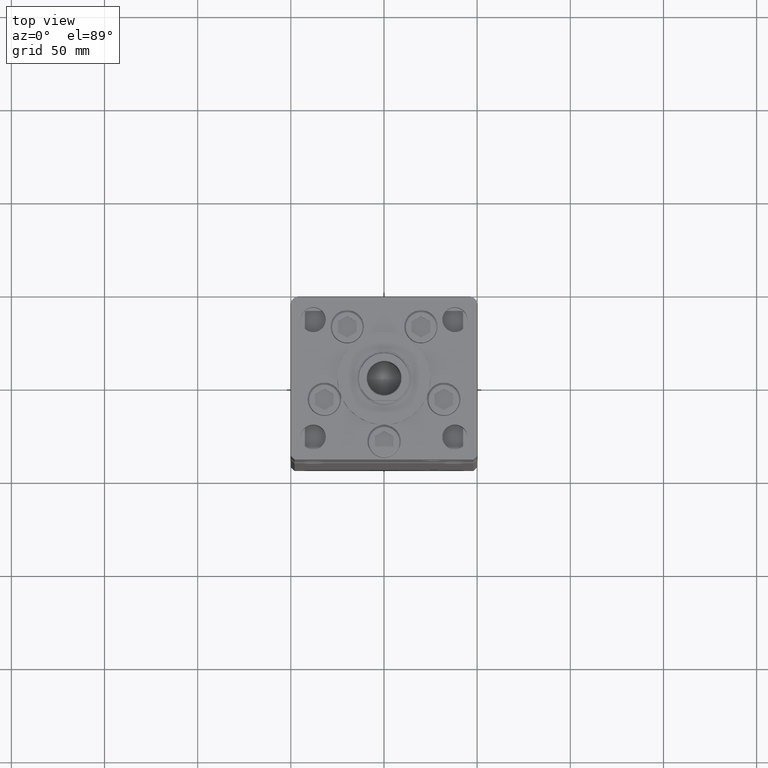
[diagram: clean part render]
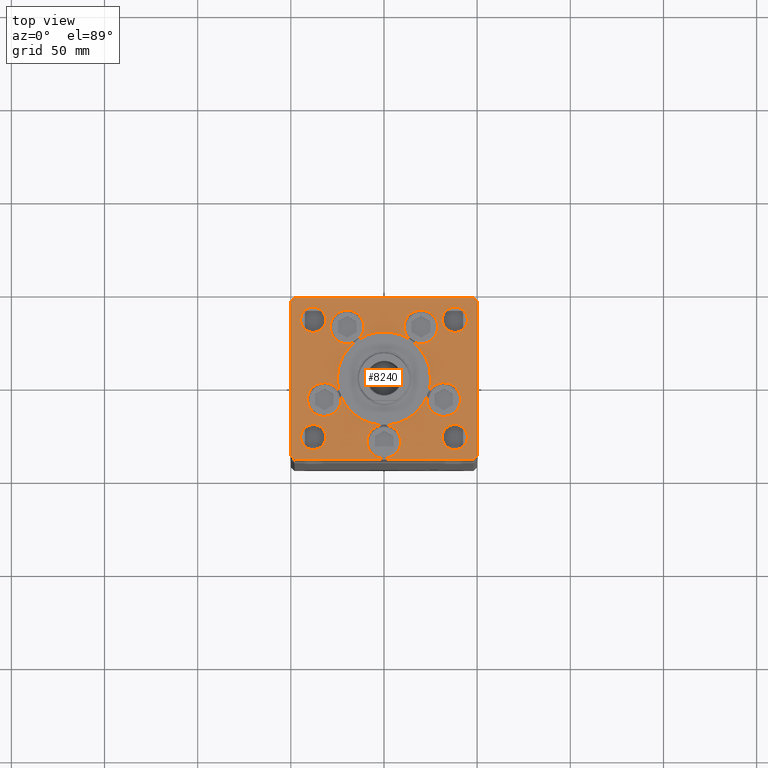
[diagram: same view with one face highlighted and labeled with its STEP entity id]
A machine part, top view. The second image highlights one B-rep face of the part: STEP entity #8240.
In plain terms, the highlighted planar face has unit normal (0, 0, 1).
Its self-contained STEP definition (entity closure, byte-faithful):
#178 = CARTESIAN_POINT ( 'NONE',  ( 47.99999999999999289, 43.50000000000000000, 0.000000000000000000 ) ) ;
#237 = ORIENTED_EDGE ( 'NONE', *, *, #46623, .T. ) ;
#488 = CIRCLE ( 'NONE', #52843, 6.749999999999999112 ) ;
#527 = AXIS2_PLACEMENT_3D ( 'NONE', #33779, #28940, #21694 ) ;
#541 = LINE ( 'NONE', #29288, #1303 ) ;
#577 = ORIENTED_EDGE ( 'NONE', *, *, #46697, .F. ) ;
#1220 = DIRECTION ( 'NONE',  ( 1.000000000000000000, 0.000000000000000000, 0.000000000000000000 ) ) ;
#1303 = VECTOR ( 'NONE', #50244, 1000.000000000000000 ) ;
#1397 = EDGE_CURVE ( 'NONE', #33770, #30758, #43979, .T. ) ;
#1419 = AXIS2_PLACEMENT_3D ( 'NONE', #34790, #51176, #10610 ) ;
#1478 = CARTESIAN_POINT ( 'NONE',  ( -9.000000000000000000, -34.00000000000000000, 0.000000000000000000 ) ) ;
#1790 = AXIS2_PLACEMENT_3D ( 'NONE', #8534, #8006, #37007 ) ;
#1950 = CARTESIAN_POINT ( 'NONE',  ( 32.05550741379015989, -11.33333333333332860, 0.000000000000000000 ) ) ;
#2024 = ORIENTED_EDGE ( 'NONE', *, *, #8502, .F. ) ;
#2588 = EDGE_CURVE ( 'NONE', #44837, #32269, #8793, .T. ) ;
#3127 = VERTEX_POINT ( 'NONE', #45392 ) ;
#3428 = AXIS2_PLACEMENT_3D ( 'NONE', #27082, #10715, #23585 ) ;
#3695 = EDGE_CURVE ( 'NONE', #16921, #8331, #37218, .T. ) ;
#3833 = CIRCLE ( 'NONE', #11549, 6.749999999999999112 ) ;
#4064 = CARTESIAN_POINT ( 'NONE',  ( -32.05550741379015989, -11.33333333333332860, 0.000000000000000000 ) ) ;
#4393 = EDGE_CURVE ( 'NONE', #51844, #41886, #39770, .T. ) ;
#4591 = DIRECTION ( 'NONE',  ( 1.000000000000000000, 0.000000000000000000, 0.000000000000000000 ) ) ;
#4751 = ORIENTED_EDGE ( 'NONE', *, *, #25495, .F. ) ;
#4832 = LINE ( 'NONE', #46737, #12812 ) ;
#4835 = AXIS2_PLACEMENT_3D ( 'NONE', #44134, #44396, #27998 ) ;
#4864 = AXIS2_PLACEMENT_3D ( 'NONE', #1950, #26909, #6249 ) ;
#5104 = DIRECTION ( 'NONE',  ( 1.000000000000000000, 0.000000000000000000, 0.000000000000000000 ) ) ;
#5470 = VERTEX_POINT ( 'NONE', #43689 ) ;
#5696 = CARTESIAN_POINT ( 'NONE',  ( -31.25000000000000711, -31.50000000000000711, 0.000000000000000000 ) ) ;
#5837 = CARTESIAN_POINT ( 'NONE',  ( 38.00000000000000711, -31.50000000000000711, 0.000000000000000000 ) ) ;
#5903 = DIRECTION ( 'NONE',  ( 1.000000000000000000, 0.000000000000000000, 0.000000000000000000 ) ) ;
#6249 = DIRECTION ( 'NONE',  ( 1.000000000000000000, 0.000000000000000000, 0.000000000000000000 ) ) ;
#6298 = AXIS2_PLACEMENT_3D ( 'NONE', #53011, #32579, #20494 ) ;
#6611 = ORIENTED_EDGE ( 'NONE', *, *, #9516, .F. ) ;
#6972 = EDGE_CURVE ( 'NONE', #38397, #17687, #37984, .T. ) ;
#7043 = VERTEX_POINT ( 'NONE', #24769 ) ;
#7083 = DIRECTION ( 'NONE',  ( 1.000000000000000000, 0.000000000000000000, 0.000000000000000000 ) ) ;
#7141 = DIRECTION ( 'NONE',  ( -0.7071067811865536790, -0.7071067811865414665, 0.000000000000000000 ) ) ;
#7168 = CIRCLE ( 'NONE', #28602, 6.749999999999999112 ) ;
#7252 = ORIENTED_EDGE ( 'NONE', *, *, #48240, .T. ) ;
#7376 = ORIENTED_EDGE ( 'NONE', *, *, #21017, .F. ) ;
#7432 = ORIENTED_EDGE ( 'NONE', *, *, #12560, .T. ) ;
#7566 = DIRECTION ( 'NONE',  ( -0.000000000000000000, -0.000000000000000000, -1.000000000000000000 ) ) ;
#8006 = DIRECTION ( 'NONE',  ( 0.000000000000000000, 0.000000000000000000, 1.000000000000000000 ) ) ;
#8107 = DIRECTION ( 'NONE',  ( 0.000000000000000000, 0.000000000000000000, 1.000000000000000000 ) ) ;
#8240 = ADVANCED_FACE ( 'NONE', ( #33584, #25779, #41908, #17472, #50228, #33313 ), #25511, .T. ) ;
#8331 = VERTEX_POINT ( 'NONE', #52882 ) ;
#8502 = EDGE_CURVE ( 'NONE', #8331, #33770, #34613, .T. ) ;
#8534 = CARTESIAN_POINT ( 'NONE',  ( 19.82068048781374969, 27.62499999999998934, 0.000000000000000000 ) ) ;
#8677 = CIRCLE ( 'NONE', #1790, 8.999999999999998224 ) ;
#8793 = LINE ( 'NONE', #178, #12286 ) ;
#8804 = CARTESIAN_POINT ( 'NONE',  ( 48.00000000000000711, -43.49999999999992184, 0.000000000000000000 ) ) ;
#8822 = CARTESIAN_POINT ( 'NONE',  ( -25.00000000000000000, -6.938893903907228378E-15, 0.000000000000000000 ) ) ;
#9045 = DIRECTION ( 'NONE',  ( 1.000000000000000000, 0.000000000000000000, 0.000000000000000000 ) ) ;
#9313 = VERTEX_POINT ( 'NONE', #31576 ) ;
#9323 = CIRCLE ( 'NONE', #44467, 8.999999999999998224 ) ;
#9351 = DIRECTION ( 'NONE',  ( 1.000000000000000000, 0.000000000000000000, 0.000000000000000000 ) ) ;
#9483 = CARTESIAN_POINT ( 'NONE',  ( 0.000000000000000000, -6.938893903907228378E-15, 0.000000000000000000 ) ) ;
#9516 = EDGE_CURVE ( 'NONE', #18557, #7043, #7168, .T. ) ;
#9610 = ORIENTED_EDGE ( 'NONE', *, *, #20102, .T. ) ;
#10102 = DIRECTION ( 'NONE',  ( 0.000000000000000000, 0.000000000000000000, 1.000000000000000000 ) ) ;
#10201 = CARTESIAN_POINT ( 'NONE',  ( 32.05550741379015989, -11.33333333333332860, 0.000000000000000000 ) ) ;
#10248 = AXIS2_PLACEMENT_3D ( 'NONE', #10201, #47769, #5903 ) ;
#10386 = AXIS2_PLACEMENT_3D ( 'NONE', #52203, #12181, #19420 ) ;
#10390 = DIRECTION ( 'NONE',  ( 1.000000000000000000, 0.000000000000000000, 0.000000000000000000 ) ) ;
#10507 = DIRECTION ( 'NONE',  ( 0.000000000000000000, 0.000000000000000000, 1.000000000000000000 ) ) ;
#10610 = DIRECTION ( 'NONE',  ( -1.000000000000000000, 0.000000000000000000, 0.000000000000000000 ) ) ;
#10715 = DIRECTION ( 'NONE',  ( 0.000000000000000000, 0.000000000000000000, 1.000000000000000000 ) ) ;
#10933 = CARTESIAN_POINT ( 'NONE',  ( -38.00000000000000000, 31.50000000000000000, 0.000000000000000000 ) ) ;
#10936 = ORIENTED_EDGE ( 'NONE', *, *, #50135, .F. ) ;
#11090 = VERTEX_POINT ( 'NONE', #27035 ) ;
#11183 = VERTEX_POINT ( 'NONE', #31335 ) ;
#11190 = EDGE_CURVE ( 'NONE', #48458, #43378, #3833, .T. ) ;
#11357 = DIRECTION ( 'NONE',  ( 0.000000000000000000, 0.000000000000000000, 1.000000000000000000 ) ) ;
#11529 = CARTESIAN_POINT ( 'NONE',  ( 23.57022603955158502, -8.333333333333332149, 0.000000000000000000 ) ) ;
#11549 = AXIS2_PLACEMENT_3D ( 'NONE', #10933, #27293, #43692 ) ;
#11644 = DIRECTION ( 'NONE',  ( 0.7071067811865487940, -0.7071067811865463515, 0.000000000000000000 ) ) ;
#11891 = DIRECTION ( 'NONE',  ( 1.000000000000000000, 0.000000000000000000, 0.000000000000000000 ) ) ;
#12181 = DIRECTION ( 'NONE',  ( 0.000000000000000000, 0.000000000000000000, 1.000000000000000000 ) ) ;
#12277 = EDGE_LOOP ( 'NONE', ( #44435, #44960 ) ) ;
#12283 = VERTEX_POINT ( 'NONE', #50046 ) ;
#12286 = VECTOR ( 'NONE', #16594, 1000.000000000000000 ) ;
#12560 = EDGE_CURVE ( 'NONE', #52043, #20231, #541, .T. ) ;
#12779 = CIRCLE ( 'NONE', #39332, 25.00000000000000000 ) ;
#12812 = VECTOR ( 'NONE', #29268, 1000.000000000000000 ) ;
#12964 = VERTEX_POINT ( 'NONE', #46622 ) ;
#13107 = LINE ( 'NONE', #13641, #37861 ) ;
#13178 = AXIS2_PLACEMENT_3D ( 'NONE', #37301, #36764, #48575 ) ;
#13332 = ORIENTED_EDGE ( 'NONE', *, *, #46758, .F. ) ;
#13641 = CARTESIAN_POINT ( 'NONE',  ( 50.00000000000000000, 41.50000000000000711, 0.000000000000000000 ) ) ;
#14104 = ORIENTED_EDGE ( 'NONE', *, *, #33522, .F. ) ;
#14281 = AXIS2_PLACEMENT_3D ( 'NONE', #4064, #8107, #4591 ) ;
#14286 = DIRECTION ( 'NONE',  ( 1.000000000000000000, 0.000000000000000000, 0.000000000000000000 ) ) ;
#14429 = CARTESIAN_POINT ( 'NONE',  ( -48.00000000000000000, 43.49999999999997158, 0.000000000000000000 ) ) ;
#14679 = CIRCLE ( 'NONE', #10386, 9.000000000000000000 ) ;
#14849 = CARTESIAN_POINT ( 'NONE',  ( 25.00000000000000000, -3.877276906038844941E-15, 0.000000000000000000 ) ) ;
#15140 = DIRECTION ( 'NONE',  ( 0.000000000000000000, 0.000000000000000000, 1.000000000000000000 ) ) ;
#15264 = EDGE_CURVE ( 'NONE', #41886, #51844, #488, .T. ) ;
#15462 = ORIENTED_EDGE ( 'NONE', *, *, #15264, .F. ) ;
#15641 = DIRECTION ( 'NONE',  ( 0.000000000000000000, 0.000000000000000000, 1.000000000000000000 ) ) ;
#15923 = CARTESIAN_POINT ( 'NONE',  ( -14.57402977045128978, 20.31249999999999289, 0.000000000000000000 ) ) ;
#16114 = EDGE_CURVE ( 'NONE', #26995, #9313, #32278, .T. ) ;
#16186 = DIRECTION ( 'NONE',  ( 1.000000000000000000, 0.000000000000000000, 0.000000000000000000 ) ) ;
#16253 = CIRCLE ( 'NONE', #47985, 25.00000000000000000 ) ;
#16293 = AXIS2_PLACEMENT_3D ( 'NONE', #9483, #25845, #38228 ) ;
#16441 = EDGE_CURVE ( 'NONE', #8331, #11090, #49463, .T. ) ;
#16494 = EDGE_CURVE ( 'NONE', #32269, #12964, #51223, .T. ) ;
#16594 = DIRECTION ( 'NONE',  ( -1.000000000000000000, -2.891205793294678326E-16, 0.000000000000000000 ) ) ;
#16609 = CARTESIAN_POINT ( 'NONE',  ( 14.57402977045128623, 20.31249999999998579, 0.000000000000000000 ) ) ;
#16886 = CIRCLE ( 'NONE', #4864, 9.000000000000001776 ) ;
#16921 = VERTEX_POINT ( 'NONE', #34345 ) ;
#16977 = CARTESIAN_POINT ( 'NONE',  ( -10.82068048781375147, 27.62499999999998934, 0.000000000000000000 ) ) ;
#16979 = DIRECTION ( 'NONE',  ( 0.000000000000000000, 0.000000000000000000, 1.000000000000000000 ) ) ;
#17105 = CIRCLE ( 'NONE', #41115, 6.749999999999999112 ) ;
#17134 = EDGE_CURVE ( 'NONE', #52039, #52043, #38583, .T. ) ;
#17172 = DIRECTION ( 'NONE',  ( 0.000000000000000000, 0.000000000000000000, 1.000000000000000000 ) ) ;
#17472 = FACE_BOUND ( 'NONE', #28338, .T. ) ;
#17687 = VERTEX_POINT ( 'NONE', #16977 ) ;
#17868 = CIRCLE ( 'NONE', #43574, 25.00000000000000000 ) ;
#18307 = ORIENTED_EDGE ( 'NONE', *, *, #35034, .F. ) ;
#18557 = VERTEX_POINT ( 'NONE', #5696 ) ;
#19221 = DIRECTION ( 'NONE',  ( 0.000000000000000000, 0.000000000000000000, 1.000000000000000000 ) ) ;
#19270 = ORIENTED_EDGE ( 'NONE', *, *, #51551, .T. ) ;
#19363 = VERTEX_POINT ( 'NONE', #8822 ) ;
#19420 = DIRECTION ( 'NONE',  ( 1.000000000000000000, 0.000000000000000000, 0.000000000000000000 ) ) ;
#19478 = ORIENTED_EDGE ( 'NONE', *, *, #51850, .F. ) ;
#19651 = CIRCLE ( 'NONE', #10248, 9.000000000000001776 ) ;
#19732 = CARTESIAN_POINT ( 'NONE',  ( 47.99999999999999289, 43.50000000000000000, 0.000000000000000000 ) ) ;
#19858 = VERTEX_POINT ( 'NONE', #44946 ) ;
#20102 = EDGE_CURVE ( 'NONE', #5470, #52039, #38365, .T. ) ;
#20231 = VERTEX_POINT ( 'NONE', #24340 ) ;
#20494 = DIRECTION ( 'NONE',  ( 1.000000000000000000, 0.000000000000000000, 0.000000000000000000 ) ) ;
#20657 = DIRECTION ( 'NONE',  ( 1.000000000000000000, 0.000000000000000000, 0.000000000000000000 ) ) ;
#21017 = EDGE_CURVE ( 'NONE', #11090, #16921, #37436, .T. ) ;
#21166 = CARTESIAN_POINT ( 'NONE',  ( -31.25000000000000000, 31.50000000000000000, 0.000000000000000000 ) ) ;
#21274 = EDGE_CURVE ( 'NONE', #17687, #19858, #42600, .T. ) ;
#21277 = CARTESIAN_POINT ( 'NONE',  ( 0.000000000000000000, -25.00000000000000000, 0.000000000000000000 ) ) ;
#21336 = EDGE_CURVE ( 'NONE', #43378, #48458, #48609, .T. ) ;
#21465 = CIRCLE ( 'NONE', #3428, 9.000000000000001776 ) ;
#21681 = CARTESIAN_POINT ( 'NONE',  ( 50.00000000000000000, -41.49999999999992895, 0.000000000000000000 ) ) ;
#21694 = DIRECTION ( 'NONE',  ( 1.000000000000000000, 0.000000000000000000, 0.000000000000000000 ) ) ;
#21725 = EDGE_CURVE ( 'NONE', #30454, #25790, #16886, .T. ) ;
#22268 = ORIENTED_EDGE ( 'NONE', *, *, #46814, .F. ) ;
#23585 = DIRECTION ( 'NONE',  ( 1.000000000000000000, 0.000000000000000000, 0.000000000000000000 ) ) ;
#23684 = DIRECTION ( 'NONE',  ( 1.000000000000000000, 0.000000000000000000, 0.000000000000000000 ) ) ;
#23941 = ORIENTED_EDGE ( 'NONE', *, *, #21274, .F. ) ;
#24340 = CARTESIAN_POINT ( 'NONE',  ( 50.00000000000000000, 41.50000000000000711, 0.000000000000000000 ) ) ;
#24361 = CARTESIAN_POINT ( 'NONE',  ( 0.000000000000000000, -6.938893903907228378E-15, 0.000000000000000000 ) ) ;
#24769 = CARTESIAN_POINT ( 'NONE',  ( -44.75000000000000711, -31.50000000000000711, 0.000000000000000000 ) ) ;
#25227 = ORIENTED_EDGE ( 'NONE', *, *, #1397, .F. ) ;
#25228 = CARTESIAN_POINT ( 'NONE',  ( 23.05550741379015633, -11.33333333333332682, 0.000000000000000000 ) ) ;
#25495 = EDGE_CURVE ( 'NONE', #33770, #30454, #17868, .T. ) ;
#25511 = PLANE ( 'NONE',  #31136 ) ;
#25779 = FACE_BOUND ( 'NONE', #12277, .T. ) ;
#25790 = VERTEX_POINT ( 'NONE', #25228 ) ;
#25845 = DIRECTION ( 'NONE',  ( 0.000000000000000000, 0.000000000000000000, 1.000000000000000000 ) ) ;
#26201 = ORIENTED_EDGE ( 'NONE', *, *, #51416, .T. ) ;
#26637 = CIRCLE ( 'NONE', #35196, 25.00000000000000000 ) ;
#26728 = EDGE_LOOP ( 'NONE', ( #19270, #7252 ) ) ;
#26889 = ORIENTED_EDGE ( 'NONE', *, *, #36744, .F. ) ;
#26909 = DIRECTION ( 'NONE',  ( 0.000000000000000000, 0.000000000000000000, 1.000000000000000000 ) ) ;
#26949 = LINE ( 'NONE', #40382, #39440 ) ;
#26995 = VERTEX_POINT ( 'NONE', #16609 ) ;
#27016 = DIRECTION ( 'NONE',  ( -0.000000000000000000, -0.000000000000000000, -1.000000000000000000 ) ) ;
#27035 = CARTESIAN_POINT ( 'NONE',  ( -41.05550741379015989, -11.33333333333332682, 0.000000000000000000 ) ) ;
#27082 = CARTESIAN_POINT ( 'NONE',  ( 32.05550741379015989, -11.33333333333332860, 0.000000000000000000 ) ) ;
#27289 = EDGE_CURVE ( 'NONE', #51867, #26995, #9323, .T. ) ;
#27293 = DIRECTION ( 'NONE',  ( -0.000000000000000000, -0.000000000000000000, -1.000000000000000000 ) ) ;
#27969 = VECTOR ( 'NONE', #7141, 1000.000000000000000 ) ;
#27987 = CARTESIAN_POINT ( 'NONE',  ( -19.82068048781374969, 27.62499999999998934, 0.000000000000000000 ) ) ;
#27998 = DIRECTION ( 'NONE',  ( 1.000000000000000000, 0.000000000000000000, 0.000000000000000000 ) ) ;
#28039 = EDGE_CURVE ( 'NONE', #26995, #38397, #51383, .T. ) ;
#28338 = EDGE_LOOP ( 'NONE', ( #6611, #13332 ) ) ;
#28394 = ORIENTED_EDGE ( 'NONE', *, *, #16441, .F. ) ;
#28602 = AXIS2_PLACEMENT_3D ( 'NONE', #39318, #15140, #7083 ) ;
#28940 = DIRECTION ( 'NONE',  ( 0.000000000000000000, 0.000000000000000000, 1.000000000000000000 ) ) ;
#29155 = DIRECTION ( 'NONE',  ( 0.000000000000000000, 0.000000000000000000, 1.000000000000000000 ) ) ;
#29268 = DIRECTION ( 'NONE',  ( 8.360113137237620037E-17, -1.000000000000000000, 0.000000000000000000 ) ) ;
#29288 = CARTESIAN_POINT ( 'NONE',  ( 50.00000000000000000, -41.49999999999992895, 0.000000000000000000 ) ) ;
#29438 = DIRECTION ( 'NONE',  ( 0.000000000000000000, 0.000000000000000000, 1.000000000000000000 ) ) ;
#29578 = CARTESIAN_POINT ( 'NONE',  ( 0.000000000000000000, -6.938893903907228378E-15, 0.000000000000000000 ) ) ;
#29825 = EDGE_CURVE ( 'NONE', #30029, #26995, #16253, .T. ) ;
#30004 = DIRECTION ( 'NONE',  ( -0.7071067811865512365, 0.7071067811865439090, 0.000000000000000000 ) ) ;
#30029 = VERTEX_POINT ( 'NONE', #14849 ) ;
#30303 = AXIS2_PLACEMENT_3D ( 'NONE', #49637, #37557, #9351 ) ;
#30454 = VERTEX_POINT ( 'NONE', #11529 ) ;
#30550 = EDGE_LOOP ( 'NONE', ( #41695, #15462 ) ) ;
#30588 = AXIS2_PLACEMENT_3D ( 'NONE', #46082, #29155, #1220 ) ;
#30758 = VERTEX_POINT ( 'NONE', #1478 ) ;
#30964 = CIRCLE ( 'NONE', #34408, 6.749999999999999112 ) ;
#31068 = CARTESIAN_POINT ( 'NONE',  ( 44.75000000000000711, -31.50000000000000711, 0.000000000000000000 ) ) ;
#31136 = AXIS2_PLACEMENT_3D ( 'NONE', #37615, #41638, #5104 ) ;
#31314 = DIRECTION ( 'NONE',  ( -1.000000000000000000, 0.000000000000000000, 0.000000000000000000 ) ) ;
#31335 = CARTESIAN_POINT ( 'NONE',  ( 31.25000000000000711, -31.50000000000000711, 0.000000000000000000 ) ) ;
#31422 = VECTOR ( 'NONE', #42863, 1000.000000000000114 ) ;
#31576 = CARTESIAN_POINT ( 'NONE',  ( 28.82068048781374969, 27.62499999999998934, 0.000000000000000000 ) ) ;
#31756 = ORIENTED_EDGE ( 'NONE', *, *, #3695, .F. ) ;
#32269 = VERTEX_POINT ( 'NONE', #37318 ) ;
#32278 = CIRCLE ( 'NONE', #4835, 8.999999999999998224 ) ;
#32291 = CARTESIAN_POINT ( 'NONE',  ( 0.000000000000000000, -6.938893903907228378E-15, 0.000000000000000000 ) ) ;
#32579 = DIRECTION ( 'NONE',  ( 0.000000000000000000, 0.000000000000000000, 1.000000000000000000 ) ) ;
#32640 = CARTESIAN_POINT ( 'NONE',  ( 41.05550741379015989, -11.33333333333332860, 0.000000000000000000 ) ) ;
#32837 = CARTESIAN_POINT ( 'NONE',  ( 31.25000000000000000, 31.50000000000000000, 0.000000000000000000 ) ) ;
#33313 = FACE_BOUND ( 'NONE', #26728, .T. ) ;
#33357 = DIRECTION ( 'NONE',  ( 1.000000000000000000, 0.000000000000000000, 0.000000000000000000 ) ) ;
#33522 = EDGE_CURVE ( 'NONE', #9313, #51867, #8677, .T. ) ;
#33584 = FACE_BOUND ( 'NONE', #37681, .T. ) ;
#33770 = VERTEX_POINT ( 'NONE', #21277 ) ;
#33779 = CARTESIAN_POINT ( 'NONE',  ( -32.05550741379015989, -11.33333333333332860, 0.000000000000000000 ) ) ;
#34345 = CARTESIAN_POINT ( 'NONE',  ( -23.05550741379015633, -11.33333333333332860, 0.000000000000000000 ) ) ;
#34408 = AXIS2_PLACEMENT_3D ( 'NONE', #5837, #27016, #31314 ) ;
#34545 = DIRECTION ( 'NONE',  ( 1.000000000000000000, 0.000000000000000000, 0.000000000000000000 ) ) ;
#34613 = CIRCLE ( 'NONE', #30303, 25.00000000000000000 ) ;
#34623 = VERTEX_POINT ( 'NONE', #32640 ) ;
#34749 = ORIENTED_EDGE ( 'NONE', *, *, #28039, .F. ) ;
#34790 = CARTESIAN_POINT ( 'NONE',  ( -38.00000000000000000, 31.50000000000000000, 0.000000000000000000 ) ) ;
#34801 = EDGE_CURVE ( 'NONE', #12283, #5470, #26949, .T. ) ;
#34960 = ORIENTED_EDGE ( 'NONE', *, *, #45295, .F. ) ;
#35034 = EDGE_CURVE ( 'NONE', #38397, #19363, #46308, .T. ) ;
#35196 = AXIS2_PLACEMENT_3D ( 'NONE', #32291, #48677, #11891 ) ;
#35917 = AXIS2_PLACEMENT_3D ( 'NONE', #24361, #45302, #36992 ) ;
#36744 = EDGE_CURVE ( 'NONE', #25790, #34623, #21465, .T. ) ;
#36764 = DIRECTION ( 'NONE',  ( 0.000000000000000000, 0.000000000000000000, 1.000000000000000000 ) ) ;
#36992 = DIRECTION ( 'NONE',  ( 1.000000000000000000, 0.000000000000000000, 0.000000000000000000 ) ) ;
#37007 = DIRECTION ( 'NONE',  ( 1.000000000000000000, 0.000000000000000000, 0.000000000000000000 ) ) ;
#37218 = CIRCLE ( 'NONE', #6298, 9.000000000000001776 ) ;
#37256 = CARTESIAN_POINT ( 'NONE',  ( -44.75000000000000000, 31.50000000000000000, 0.000000000000000000 ) ) ;
#37301 = CARTESIAN_POINT ( 'NONE',  ( 38.00000000000000000, 31.50000000000000000, 0.000000000000000000 ) ) ;
#37318 = CARTESIAN_POINT ( 'NONE',  ( -48.00000000000000000, 43.49999999999997158, 0.000000000000000000 ) ) ;
#37436 = CIRCLE ( 'NONE', #14281, 9.000000000000001776 ) ;
#37557 = DIRECTION ( 'NONE',  ( 0.000000000000000000, 0.000000000000000000, 1.000000000000000000 ) ) ;
#37615 = CARTESIAN_POINT ( 'NONE',  ( 0.000000000000000000, 0.000000000000000000, 0.000000000000000000 ) ) ;
#37681 = EDGE_LOOP ( 'NONE', ( #34749, #49619, #14104, #47748, #41767, #34960, #577, #26889, #43103, #4751, #22268, #43941, #25227, #2024, #31756, #7376, #28394, #10936, #18307, #19478, #23941, #42605 ) ) ;
#37781 = CARTESIAN_POINT ( 'NONE',  ( -38.00000000000000711, -31.50000000000000711, 0.000000000000000000 ) ) ;
#37861 = VECTOR ( 'NONE', #30004, 999.9999999999998863 ) ;
#37984 = CIRCLE ( 'NONE', #42273, 9.000000000000000000 ) ;
#38078 = ORIENTED_EDGE ( 'NONE', *, *, #17134, .T. ) ;
#38228 = DIRECTION ( 'NONE',  ( 1.000000000000000000, 0.000000000000000000, 0.000000000000000000 ) ) ;
#38365 = LINE ( 'NONE', #39397, #46012 ) ;
#38397 = VERTEX_POINT ( 'NONE', #15923 ) ;
#38583 = LINE ( 'NONE', #51452, #31422 ) ;
#39116 = CARTESIAN_POINT ( 'NONE',  ( 0.000000000000000000, -6.938893903907228378E-15, 0.000000000000000000 ) ) ;
#39276 = EDGE_CURVE ( 'NONE', #30758, #3127, #14679, .T. ) ;
#39318 = CARTESIAN_POINT ( 'NONE',  ( -38.00000000000000711, -31.50000000000000711, 0.000000000000000000 ) ) ;
#39332 = AXIS2_PLACEMENT_3D ( 'NONE', #44381, #52453, #16186 ) ;
#39369 = CIRCLE ( 'NONE', #46244, 9.000000000000000000 ) ;
#39372 = DIRECTION ( 'NONE',  ( 0.000000000000000000, 0.000000000000000000, 1.000000000000000000 ) ) ;
#39374 = ORIENTED_EDGE ( 'NONE', *, *, #34801, .T. ) ;
#39397 = CARTESIAN_POINT ( 'NONE',  ( -48.00000000000000711, -43.50000000000002842, 0.000000000000000000 ) ) ;
#39414 = CIRCLE ( 'NONE', #52301, 6.749999999999999112 ) ;
#39440 = VECTOR ( 'NONE', #11644, 1000.000000000000000 ) ;
#39770 = CIRCLE ( 'NONE', #13178, 6.749999999999999112 ) ;
#40242 = ORIENTED_EDGE ( 'NONE', *, *, #16494, .T. ) ;
#40344 = DIRECTION ( 'NONE',  ( -1.000000000000000000, 0.000000000000000000, 0.000000000000000000 ) ) ;
#40382 = CARTESIAN_POINT ( 'NONE',  ( -50.00000000000000000, -41.50000000000004263, 0.000000000000000000 ) ) ;
#40623 = CARTESIAN_POINT ( 'NONE',  ( -19.82068048781374969, 27.62499999999998934, 0.000000000000000000 ) ) ;
#40650 = EDGE_LOOP ( 'NONE', ( #39374, #9610, #38078, #7432, #26201, #49953, #40242, #237 ) ) ;
#41082 = CARTESIAN_POINT ( 'NONE',  ( 0.000000000000000000, -34.00000000000000000, 0.000000000000000000 ) ) ;
#41115 = AXIS2_PLACEMENT_3D ( 'NONE', #37781, #29438, #9045 ) ;
#41638 = DIRECTION ( 'NONE',  ( -0.000000000000000000, 0.000000000000000000, 1.000000000000000000 ) ) ;
#41695 = ORIENTED_EDGE ( 'NONE', *, *, #4393, .F. ) ;
#41767 = ORIENTED_EDGE ( 'NONE', *, *, #29825, .F. ) ;
#41886 = VERTEX_POINT ( 'NONE', #32837 ) ;
#41908 = FACE_BOUND ( 'NONE', #30550, .T. ) ;
#42273 = AXIS2_PLACEMENT_3D ( 'NONE', #27987, #11357, #52184 ) ;
#42490 = CARTESIAN_POINT ( 'NONE',  ( 38.00000000000000000, 31.50000000000000000, 0.000000000000000000 ) ) ;
#42600 = CIRCLE ( 'NONE', #30588, 9.000000000000000000 ) ;
#42605 = ORIENTED_EDGE ( 'NONE', *, *, #6972, .F. ) ;
#42863 = DIRECTION ( 'NONE',  ( 0.7071067811865474617, 0.7071067811865474617, 0.000000000000000000 ) ) ;
#42990 = CIRCLE ( 'NONE', #46413, 9.000000000000000000 ) ;
#43103 = ORIENTED_EDGE ( 'NONE', *, *, #21725, .F. ) ;
#43170 = DIRECTION ( 'NONE',  ( 1.000000000000000000, 1.156482317317871331E-15, 0.000000000000000000 ) ) ;
#43378 = VERTEX_POINT ( 'NONE', #21166 ) ;
#43574 = AXIS2_PLACEMENT_3D ( 'NONE', #29578, #16979, #33357 ) ;
#43689 = CARTESIAN_POINT ( 'NONE',  ( -48.00000000000000711, -43.50000000000002842, 0.000000000000000000 ) ) ;
#43692 = DIRECTION ( 'NONE',  ( -1.000000000000000000, 0.000000000000000000, 0.000000000000000000 ) ) ;
#43941 = ORIENTED_EDGE ( 'NONE', *, *, #39276, .F. ) ;
#43979 = CIRCLE ( 'NONE', #46569, 9.000000000000000000 ) ;
#44134 = CARTESIAN_POINT ( 'NONE',  ( 19.82068048781374969, 27.62499999999998934, 0.000000000000000000 ) ) ;
#44200 = CARTESIAN_POINT ( 'NONE',  ( 19.82068048781374969, 27.62499999999998934, 0.000000000000000000 ) ) ;
#44365 = CARTESIAN_POINT ( 'NONE',  ( 38.00000000000000711, -31.50000000000000711, 0.000000000000000000 ) ) ;
#44381 = CARTESIAN_POINT ( 'NONE',  ( 0.000000000000000000, -6.938893903907228378E-15, 0.000000000000000000 ) ) ;
#44396 = DIRECTION ( 'NONE',  ( 0.000000000000000000, 0.000000000000000000, 1.000000000000000000 ) ) ;
#44435 = ORIENTED_EDGE ( 'NONE', *, *, #21336, .T. ) ;
#44467 = AXIS2_PLACEMENT_3D ( 'NONE', #44200, #19221, #10390 ) ;
#44640 = CARTESIAN_POINT ( 'NONE',  ( 44.75000000000000000, 31.50000000000000000, 0.000000000000000000 ) ) ;
#44837 = VERTEX_POINT ( 'NONE', #19732 ) ;
#44946 = CARTESIAN_POINT ( 'NONE',  ( -28.82068048781374969, 27.62499999999998934, 0.000000000000000000 ) ) ;
#44960 = ORIENTED_EDGE ( 'NONE', *, *, #11190, .T. ) ;
#45295 = EDGE_CURVE ( 'NONE', #30454, #30029, #12779, .T. ) ;
#45302 = DIRECTION ( 'NONE',  ( 0.000000000000000000, 0.000000000000000000, 1.000000000000000000 ) ) ;
#45392 = CARTESIAN_POINT ( 'NONE',  ( 9.000000000000000000, -34.00000000000000000, 0.000000000000000000 ) ) ;
#46012 = VECTOR ( 'NONE', #43170, 1000.000000000000000 ) ;
#46082 = CARTESIAN_POINT ( 'NONE',  ( -19.82068048781374969, 27.62499999999998934, 0.000000000000000000 ) ) ;
#46244 = AXIS2_PLACEMENT_3D ( 'NONE', #50393, #10102, #34545 ) ;
#46308 = CIRCLE ( 'NONE', #16293, 25.00000000000000000 ) ;
#46413 = AXIS2_PLACEMENT_3D ( 'NONE', #40623, #15641, #23684 ) ;
#46569 = AXIS2_PLACEMENT_3D ( 'NONE', #41082, #17172, #20657 ) ;
#46623 = EDGE_CURVE ( 'NONE', #12964, #12283, #4832, .T. ) ;
#46622 = CARTESIAN_POINT ( 'NONE',  ( -50.00000000000000711, 41.49999999999999289, 0.000000000000000000 ) ) ;
#46697 = EDGE_CURVE ( 'NONE', #34623, #30454, #19651, .T. ) ;
#46737 = CARTESIAN_POINT ( 'NONE',  ( -50.00000000000000711, 41.49999999999999289, 0.000000000000000000 ) ) ;
#46758 = EDGE_CURVE ( 'NONE', #7043, #18557, #17105, .T. ) ;
#46814 = EDGE_CURVE ( 'NONE', #3127, #33770, #39369, .T. ) ;
#47748 = ORIENTED_EDGE ( 'NONE', *, *, #16114, .F. ) ;
#47769 = DIRECTION ( 'NONE',  ( 0.000000000000000000, 0.000000000000000000, 1.000000000000000000 ) ) ;
#47985 = AXIS2_PLACEMENT_3D ( 'NONE', #39116, #39372, #52001 ) ;
#48130 = CARTESIAN_POINT ( 'NONE',  ( 10.82068048781375147, 27.62499999999998934, 0.000000000000000000 ) ) ;
#48240 = EDGE_CURVE ( 'NONE', #11183, #49351, #39414, .T. ) ;
#48458 = VERTEX_POINT ( 'NONE', #37256 ) ;
#48575 = DIRECTION ( 'NONE',  ( 1.000000000000000000, 0.000000000000000000, 0.000000000000000000 ) ) ;
#48609 = CIRCLE ( 'NONE', #1419, 6.749999999999999112 ) ;
#48677 = DIRECTION ( 'NONE',  ( 0.000000000000000000, 0.000000000000000000, 1.000000000000000000 ) ) ;
#49351 = VERTEX_POINT ( 'NONE', #31068 ) ;
#49463 = CIRCLE ( 'NONE', #527, 9.000000000000001776 ) ;
#49619 = ORIENTED_EDGE ( 'NONE', *, *, #27289, .F. ) ;
#49637 = CARTESIAN_POINT ( 'NONE',  ( 0.000000000000000000, -6.938893903907228378E-15, 0.000000000000000000 ) ) ;
#49953 = ORIENTED_EDGE ( 'NONE', *, *, #2588, .T. ) ;
#50046 = CARTESIAN_POINT ( 'NONE',  ( -50.00000000000000000, -41.50000000000004263, 0.000000000000000000 ) ) ;
#50135 = EDGE_CURVE ( 'NONE', #19363, #8331, #26637, .T. ) ;
#50228 = FACE_OUTER_BOUND ( 'NONE', #40650, .T. ) ;
#50244 = DIRECTION ( 'NONE',  ( 0.000000000000000000, 1.000000000000000000, 0.000000000000000000 ) ) ;
#50393 = CARTESIAN_POINT ( 'NONE',  ( 0.000000000000000000, -34.00000000000000000, 0.000000000000000000 ) ) ;
#51176 = DIRECTION ( 'NONE',  ( -0.000000000000000000, -0.000000000000000000, -1.000000000000000000 ) ) ;
#51223 = LINE ( 'NONE', #14429, #27969 ) ;
#51383 = CIRCLE ( 'NONE', #35917, 25.00000000000000000 ) ;
#51416 = EDGE_CURVE ( 'NONE', #20231, #44837, #13107, .T. ) ;
#51452 = CARTESIAN_POINT ( 'NONE',  ( 48.00000000000000711, -43.49999999999992184, 0.000000000000000000 ) ) ;
#51551 = EDGE_CURVE ( 'NONE', #49351, #11183, #30964, .T. ) ;
#51844 = VERTEX_POINT ( 'NONE', #44640 ) ;
#51850 = EDGE_CURVE ( 'NONE', #19858, #38397, #42990, .T. ) ;
#51867 = VERTEX_POINT ( 'NONE', #48130 ) ;
#52001 = DIRECTION ( 'NONE',  ( 1.000000000000000000, 0.000000000000000000, 0.000000000000000000 ) ) ;
#52039 = VERTEX_POINT ( 'NONE', #8804 ) ;
#52043 = VERTEX_POINT ( 'NONE', #21681 ) ;
#52184 = DIRECTION ( 'NONE',  ( 1.000000000000000000, 0.000000000000000000, 0.000000000000000000 ) ) ;
#52203 = CARTESIAN_POINT ( 'NONE',  ( 0.000000000000000000, -34.00000000000000000, 0.000000000000000000 ) ) ;
#52301 = AXIS2_PLACEMENT_3D ( 'NONE', #44365, #7566, #40344 ) ;
#52453 = DIRECTION ( 'NONE',  ( 0.000000000000000000, 0.000000000000000000, 1.000000000000000000 ) ) ;
#52843 = AXIS2_PLACEMENT_3D ( 'NONE', #42490, #10507, #14286 ) ;
#52882 = CARTESIAN_POINT ( 'NONE',  ( -23.57022603955158502, -8.333333333333332149, 0.000000000000000000 ) ) ;
#53011 = CARTESIAN_POINT ( 'NONE',  ( -32.05550741379015989, -11.33333333333332860, 0.000000000000000000 ) ) ;